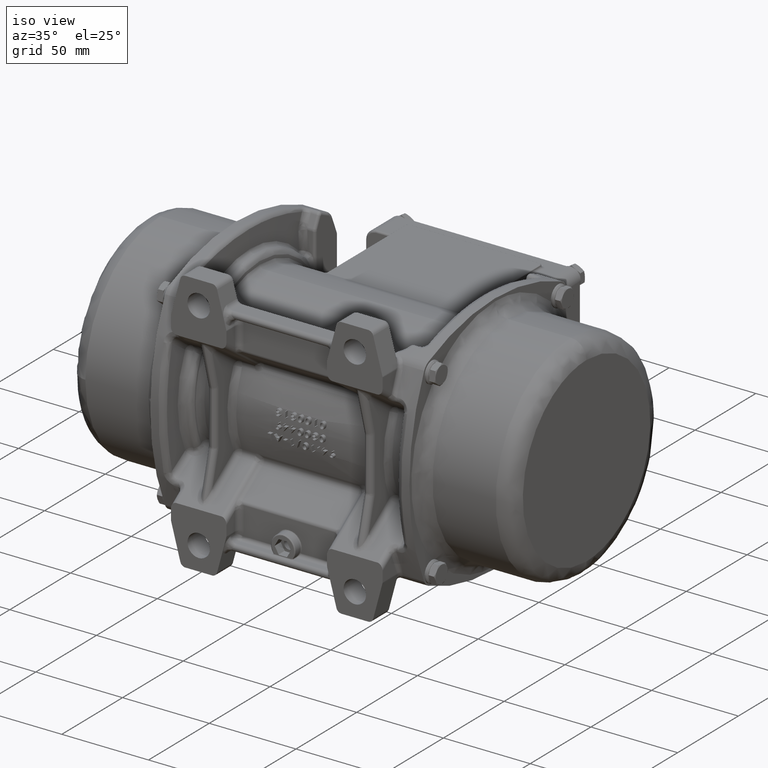
[diagram: clean part render]
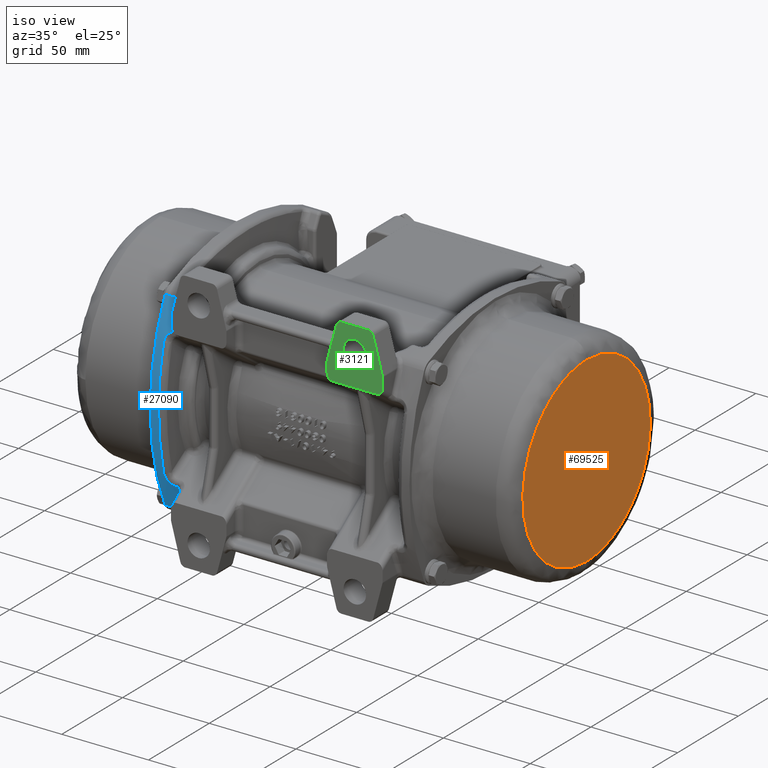
[diagram: same view with three faces highlighted in distinct colors, each labeled with its STEP entity id]
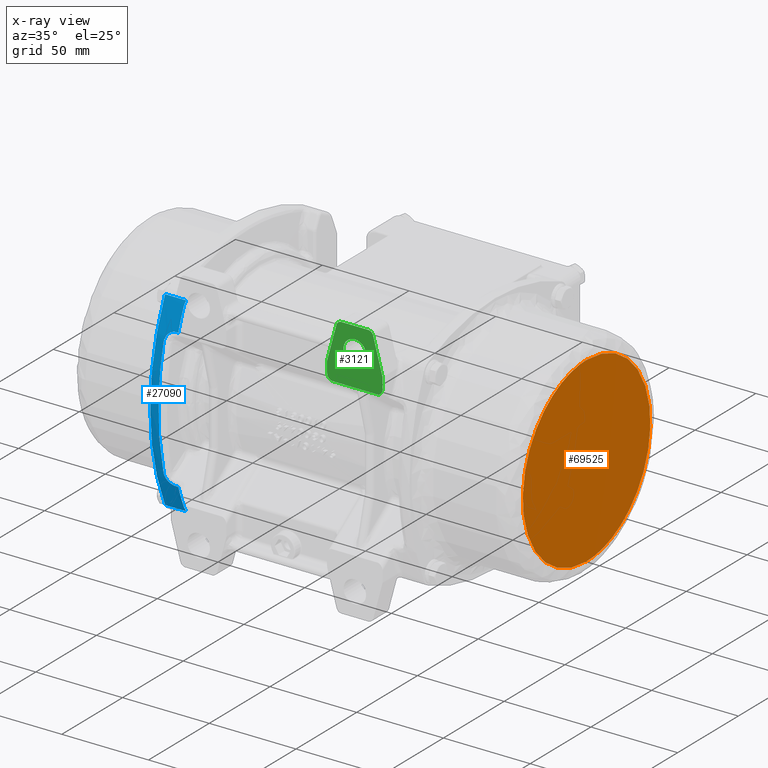
[diagram: x-ray of the same camera — body ghosted, the three highlighted faces saturated]
A machine part, iso view with three faces highlighted in distinct colors.
The next image is the same camera in x-ray (body ghosted, the three faces saturated) — at least one of them is partly hidden behind the body in this view.
Their STEP definitions:

[orange] entity #69525 — the highlighted planar face has unit normal (-1, 0, 0).
#76 = CARTESIAN_POINT ( 'NONE',  ( 127.5000000000000000, -7.244592828937403500E-015, -52.50000000000001400 ) ) ;
#867 = CARTESIAN_POINT ( 'NONE',  ( 127.5000000000000100, -105.0000000000000600, -52.50000000000005700 ) ) ;
#1122 = FACE_OUTER_BOUND ( 'NONE', #1366, .T. ) ;
#1366 = EDGE_LOOP ( 'NONE', ( #44608, #71808 ) ) ;
#5698 = PLANE ( 'NONE',  #60823 ) ;
#18020 = CARTESIAN_POINT ( 'NONE',  ( 127.5000000000000000, 61.69999999999998200, -1.734723475976807100E-014 ) ) ;
#18949 = EDGE_CURVE ( 'NONE', #48299, #70245, #33278, .T. ) ;
#19471 = CARTESIAN_POINT ( 'NONE',  ( 127.5000000000000100, 104.9999999999999700, -52.49999999999999300 ) ) ;
#25945 = CARTESIAN_POINT ( 'NONE',  ( 127.5000000000000100, 104.9999999999999700, 52.49999999999998600 ) ) ;
#30328 = DIRECTION ( 'NONE',  ( -1.000000000000000000, 0.0000000000000000000, 0.0000000000000000000 ) ) ;
#33278 =( BOUNDED_CURVE ( )  B_SPLINE_CURVE ( 3, ( #51055, #25945, #19471, #56526 ),
 .UNSPECIFIED., .F., .T. ) 
 B_SPLINE_CURVE_WITH_KNOTS ( ( 4, 4 ),
 ( 0.0000000000000000000, 1.000000000000000000 ),
 .UNSPECIFIED. ) 
 CURVE ( )  GEOMETRIC_REPRESENTATION_ITEM ( )  RATIONAL_B_SPLINE_CURVE ( ( 1.000000000000000000, 0.3333333333333333700, 0.3333333333333333700, 1.000000000000000000 ) ) 
 REPRESENTATION_ITEM ( '' )  );
#33658 = CARTESIAN_POINT ( 'NONE',  ( 127.5000000000000000, -1.387778780781445700E-014, 52.49999999999999300 ) ) ;
#44608 = ORIENTED_EDGE ( 'NONE', *, *, #18949, .F. ) ;
#48299 = VERTEX_POINT ( 'NONE', #33658 ) ;
#50121 = CARTESIAN_POINT ( 'NONE',  ( 127.5000000000000100, -105.0000000000000600, 52.50000000000001400 ) ) ;
#51055 = CARTESIAN_POINT ( 'NONE',  ( 127.5000000000000000, -1.387778780781445700E-014, 52.49999999999999300 ) ) ;
#55849 = CARTESIAN_POINT ( 'NONE',  ( 127.5000000000000000, -1.387778780781445700E-014, 52.49999999999999300 ) ) ;
#56526 = CARTESIAN_POINT ( 'NONE',  ( 127.5000000000000000, -7.244592828937403500E-015, -52.50000000000001400 ) ) ;
#57244 = EDGE_CURVE ( 'NONE', #70245, #48299, #78097, .T. ) ;
#60823 = AXIS2_PLACEMENT_3D ( 'NONE', #18020, #30328, #66552 ) ;
#62247 = CARTESIAN_POINT ( 'NONE',  ( 127.5000000000000000, -7.244592828937403500E-015, -52.50000000000001400 ) ) ;
#66552 = DIRECTION ( 'NONE',  ( 0.0000000000000000000, 0.0000000000000000000, 1.000000000000000000 ) ) ;
#69525 = ADVANCED_FACE ( 'NONE', ( #1122 ), #5698, .F. ) ;
#70245 = VERTEX_POINT ( 'NONE', #76 ) ;
#71808 = ORIENTED_EDGE ( 'NONE', *, *, #57244, .F. ) ;
#78097 =( BOUNDED_CURVE ( )  B_SPLINE_CURVE ( 3, ( #62247, #867, #50121, #55849 ),
 .UNSPECIFIED., .F., .T. ) 
 B_SPLINE_CURVE_WITH_KNOTS ( ( 4, 4 ),
 ( 0.0000000000000000000, 1.000000000000000000 ),
 .UNSPECIFIED. ) 
 CURVE ( )  GEOMETRIC_REPRESENTATION_ITEM ( )  RATIONAL_B_SPLINE_CURVE ( ( 1.000000000000000000, 0.3333333333333333700, 0.3333333333333333700, 1.000000000000000000 ) ) 
 REPRESENTATION_ITEM ( '' )  );

[blue] entity #27090 — the highlighted cylindrical surface (partial cylindrical patch) has radius 130 mm, axis along (1, 0, 0).
#206 = CARTESIAN_POINT ( 'NONE',  ( -84.50000000000000000, -64.13621963389023500, -40.17567914348743600 ) ) ;
#263 = CARTESIAN_POINT ( 'NONE',  ( -70.15863339734033800, -65.75944569806641500, -34.78836657885315000 ) ) ;
#1288 = CARTESIAN_POINT ( 'NONE',  ( -64.26656656145272000, -64.13621963389023500, -40.17567914348742200 ) ) ;
#1546 = CIRCLE ( 'NONE', #68718, 130.0000000000000000 ) ;
#1839 = DIRECTION ( 'NONE',  ( 0.0000000000000000000, 0.0000000000000000000, -1.000000000000000000 ) ) ;
#2520 = CARTESIAN_POINT ( 'NONE',  ( -65.07540541843221100, -64.14976761303411500, 40.13405775324092400 ) ) ;
#2785 = CARTESIAN_POINT ( 'NONE',  ( -67.98284229279646200, -64.55872330079957100, 38.85166697665173500 ) ) ;
#3061 = CARTESIAN_POINT ( 'NONE',  ( -67.50183809113144700, -64.44686132362456000, 39.20702064007236500 ) ) ;
#3154 = CARTESIAN_POINT ( 'NONE',  ( -62.55136478271125400, -58.44165846515438300, -54.67947744774711800 ) ) ;
#4311 = CARTESIAN_POINT ( 'NONE',  ( -68.28645511692450000, -64.64213432300400100, -38.58431275794490000 ) ) ;
#4896 = CARTESIAN_POINT ( 'NONE',  ( -70.02047861368029700, -70.50021932931566900, -0.6495124212176074400 ) ) ;
#5089 = CARTESIAN_POINT ( 'NONE',  ( -62.75451543836693700, -58.77366558624741800, -53.95728529038697000 ) ) ;
#5120 = CYLINDRICAL_SURFACE ( 'NONE', #32247, 130.0000000000000000 ) ;
#5196 = AXIS2_PLACEMENT_3D ( 'NONE', #36475, #79184, #78645 ) ;
#5637 = CARTESIAN_POINT ( 'NONE',  ( -69.71949246270128200, -65.27469252197136000, -36.48715338828157700 ) ) ;
#5693 = CARTESIAN_POINT ( 'NONE',  ( -70.02055500264829400, -70.49818281844429200, 5.578669685042648900 ) ) ;
#7174 = CARTESIAN_POINT ( 'NONE',  ( -63.00000000000000000, -59.41153771726236200, 52.53614182366344900 ) ) ;
#7811 = ORIENTED_EDGE ( 'NONE', *, *, #63604, .F. ) ;
#7853 = CARTESIAN_POINT ( 'NONE',  ( -74.69999999999998900, 59.50000000000003600, -3.408303700016811600E-014 ) ) ;
#7880 = CARTESIAN_POINT ( 'NONE',  ( -70.01606462718390800, -65.54156097943800300, 35.56187078237106600 ) ) ;
#8027 = EDGE_CURVE ( 'NONE', #78558, #59800, #51573, .T. ) ;
#8417 = CARTESIAN_POINT ( 'NONE',  ( -67.82836805820424800, -64.52026945245107500, 38.97419228656716000 ) ) ;
#8789 = CARTESIAN_POINT ( 'NONE',  ( -62.62853541377742800, -58.56158496709549900, 54.42008314309964600 ) ) ;
#9923 = LINE ( 'NONE', #206, #63556 ) ;
#10130 = EDGE_CURVE ( 'NONE', #63652, #16405, #9923, .T. ) ;
#10484 = CARTESIAN_POINT ( 'NONE',  ( -68.69728901072484500, -64.77464484924361400, -38.15541355748199200 ) ) ;
#10702 = CARTESIAN_POINT ( 'NONE',  ( -74.69999999999998900, -58.32209224431407800, 54.93591338252540600 ) ) ;
#11022 = CARTESIAN_POINT ( 'NONE',  ( -64.47181066951986800, -64.13623196582827300, -40.17564119330872800 ) ) ;
#11552 = CARTESIAN_POINT ( 'NONE',  ( -69.85576077723239100, -65.38104236716814900, -36.12148271627329200 ) ) ;
#11971 = DIRECTION ( 'NONE',  ( 1.000000000000000000, 0.0000000000000000000, 0.0000000000000000000 ) ) ;
#12104 = CARTESIAN_POINT ( 'NONE',  ( -62.86370330515625700, -58.95582961509591500, 53.55573200134007500 ) ) ;
#12133 = CARTESIAN_POINT ( 'NONE',  ( -70.02153343693527200, -70.47299407974708200, -2.739752207317573100 ) ) ;
#12398 = EDGE_CURVE ( 'NONE', #38838, #31914, #14306, .T. ) ;
#12663 = ORIENTED_EDGE ( 'NONE', *, *, #59368, .T. ) ;
#12821 = VECTOR ( 'NONE', #61629, 1000.000000000000000 ) ;
#12918 = ORIENTED_EDGE ( 'NONE', *, *, #10130, .F. ) ;
#13513 = CARTESIAN_POINT ( 'NONE',  ( -62.86370330515627100, -58.95582961509595800, -53.55573200134002600 ) ) ;
#13804 = CARTESIAN_POINT ( 'NONE',  ( -70.12304738136913300, -65.70478849482819300, 34.98243915539011800 ) ) ;
#14040 = CARTESIAN_POINT ( 'NONE',  ( -63.00000000000000000, -59.41153771726241900, -52.53614182366338500 ) ) ;
#14306 = B_SPLINE_CURVE_WITH_KNOTS ( 'NONE', 3,
 ( #24219, #66798, #60380, #72972, #35376, #78598, #78318, #35636, #12133, #41519, #4896, #5693, #36167, #48533, #60648, #47723 ),
 .UNSPECIFIED., .F., .F.,
 ( 4, 2, 2, 2, 2, 2, 2, 4 ),
 ( 0.0000000000000000000, 0.2500000000000000000, 0.3750000000000000000, 0.4375000000000000000, 0.4687500000000000000, 0.5000000000000000000, 0.7500000000000000000, 1.000000000000000000 ),
 .UNSPECIFIED. ) ;
#14315 = EDGE_CURVE ( 'NONE', #77862, #33301, #69282, .T. ) ;
#15085 = CARTESIAN_POINT ( 'NONE',  ( -63.00000000000000000, -64.13621963389022100, 40.17567914348742200 ) ) ;
#15088 = ORIENTED_EDGE ( 'NONE', *, *, #20317, .T. ) ;
#15400 = CARTESIAN_POINT ( 'NONE',  ( -68.42354580339902300, -64.68360600912127700, 38.45068959799006300 ) ) ;
#15663 = CARTESIAN_POINT ( 'NONE',  ( -66.80726439658958800, -64.32223427905793800, 39.59869323817893900 ) ) ;
#16405 = VERTEX_POINT ( 'NONE', #40596 ) ;
#17248 = B_SPLINE_CURVE_WITH_KNOTS ( 'NONE', 3,
 ( #65935, #5089, #48202, #35310 ),
 .UNSPECIFIED., .F., .F.,
 ( 4, 4 ),
 ( 0.0000000000000000000, 1.000000000000000000 ),
 .UNSPECIFIED. ) ;
#17589 = EDGE_CURVE ( 'NONE', #31914, #29405, #69741, .T. ) ;
#18487 = CARTESIAN_POINT ( 'NONE',  ( -70.18981137030023400, -65.86684212015367700, -34.39943812181682100 ) ) ;
#18501 = LINE ( 'NONE', #53111, #41407 ) ;
#18677 = CARTESIAN_POINT ( 'NONE',  ( -62.86370330515625700, -58.95582961509591500, 53.55573200134007500 ) ) ;
#18733 = CARTESIAN_POINT ( 'NONE',  ( -69.47147135425828400, -65.11771318563403100, -37.01971127994905000 ) ) ;
#18981 = CARTESIAN_POINT ( 'NONE',  ( -84.50000000000000000, -64.13621963389022100, 40.17567914348741500 ) ) ;
#19727 = CARTESIAN_POINT ( 'NONE',  ( -64.26656656145272000, -64.13621963389020700, 40.17567914348742200 ) ) ;
#19923 = CARTESIAN_POINT ( 'NONE',  ( -70.10881586443723300, -65.67807832621393500, 35.07789813293415900 ) ) ;
#20317 = EDGE_CURVE ( 'NONE', #51021, #77862, #70200, .T. ) ;
#20535 = B_SPLINE_CURVE_WITH_KNOTS ( 'NONE', 3,
 ( #26755, #8789, #59706, #59975 ),
 .UNSPECIFIED., .F., .F.,
 ( 4, 4 ),
 ( 0.0000000000000000000, 1.000000000000000000 ),
 .UNSPECIFIED. ) ;
#21517 = CARTESIAN_POINT ( 'NONE',  ( -69.71689416515816600, -65.27278669867281700, 36.49368000567605500 ) ) ;
#21739 = CARTESIAN_POINT ( 'NONE',  ( -62.86370330515627100, -58.95582961509595800, -53.55573200134002600 ) ) ;
#22333 = FACE_OUTER_BOUND ( 'NONE', #53797, .T. ) ;
#22797 = VERTEX_POINT ( 'NONE', #10702 ) ;
#22798 = CARTESIAN_POINT ( 'NONE',  ( -65.28219470665767700, -64.16454896237773700, -40.08839742064807200 ) ) ;
#23337 = CARTESIAN_POINT ( 'NONE',  ( -64.67577085090452700, -64.13967564433022500, -40.16504825175500300 ) ) ;
#23612 = CARTESIAN_POINT ( 'NONE',  ( -67.59451921621665300, -64.46762769720342600, -39.14116672350849800 ) ) ;
#23844 = ORIENTED_EDGE ( 'NONE', *, *, #77779, .T. ) ;
#24178 = CARTESIAN_POINT ( 'NONE',  ( -69.94496927647381300, -65.46141535050297500, -35.84288373185664500 ) ) ;
#24219 = CARTESIAN_POINT ( 'NONE',  ( -70.18602358918423100, -65.97356191049067300, -34.00566513824217900 ) ) ;
#24435 = CARTESIAN_POINT ( 'NONE',  ( -70.01468867072979700, -65.54261923687752800, -35.55774577205265500 ) ) ;
#24695 = CARTESIAN_POINT ( 'NONE',  ( -69.64186598347384900, -65.22140353452981300, -36.66885549406608600 ) ) ;
#25227 = CARTESIAN_POINT ( 'NONE',  ( -62.69992150497063900, -58.68181818181814400, 54.15771275856899100 ) ) ;
#26362 = DIRECTION ( 'NONE',  ( 0.0000000000000000000, 0.0000000000000000000, -1.000000000000000000 ) ) ;
#26755 = CARTESIAN_POINT ( 'NONE',  ( -62.69992150497063900, -58.68181818181814400, 54.15771275856899100 ) ) ;
#27090 = ADVANCED_FACE ( 'NONE', ( #22333 ), #5120, .T. ) ;
#27438 = CARTESIAN_POINT ( 'NONE',  ( -66.25389136304995900, -64.24342542036284000, 39.84462329652305400 ) ) ;
#27697 = CARTESIAN_POINT ( 'NONE',  ( -69.60107042843702600, -65.19354431331302600, 36.76381640732994100 ) ) ;
#27972 = CARTESIAN_POINT ( 'NONE',  ( -69.16938952220758100, -64.96445043388546000, 37.53174472721374100 ) ) ;
#28698 = CARTESIAN_POINT ( 'NONE',  ( -67.83588939444332800, -64.52211303895418800, -38.96832142590417900 ) ) ;
#29325 = LINE ( 'NONE', #47259, #75320 ) ;
#29405 = VERTEX_POINT ( 'NONE', #19727 ) ;
#29494 = CARTESIAN_POINT ( 'NONE',  ( -66.81440575835793500, -64.32242925017548900, -39.59814737199320000 ) ) ;
#30024 = CARTESIAN_POINT ( 'NONE',  ( -69.05958558903334700, -64.91697535750798000, -37.68850662567362500 ) ) ;
#30283 = CARTESIAN_POINT ( 'NONE',  ( -70.18602358918423100, -65.97356191049067300, -34.00566513824217900 ) ) ;
#31914 = VERTEX_POINT ( 'NONE', #78864 ) ;
#32247 = AXIS2_PLACEMENT_3D ( 'NONE', #55380, #11971, #36256 ) ;
#32335 = DIRECTION ( 'NONE',  ( -1.000000000000000000, -0.0000000000000000000, -0.0000000000000000000 ) ) ;
#32730 = CARTESIAN_POINT ( 'NONE',  ( -62.95455174411385000, -59.10682478008153100, -53.22175733853847400 ) ) ;
#33301 = VERTEX_POINT ( 'NONE', #25227 ) ;
#33776 = EDGE_CURVE ( 'NONE', #58215, #65173, #18501, .T. ) ;
#33791 = CARTESIAN_POINT ( 'NONE',  ( -64.26656656145272000, -64.13621963389020700, 40.17567914348742200 ) ) ;
#33880 = CARTESIAN_POINT ( 'NONE',  ( -62.62853539774737800, -58.56158494113157100, -54.42008319975772000 ) ) ;
#34783 = CARTESIAN_POINT ( 'NONE',  ( -67.08318439040988300, -64.36566726093740000, -39.46284139960411600 ) ) ;
#35295 = CARTESIAN_POINT ( 'NONE',  ( -62.69992150497225200, -58.68181818182090800, -54.15771275856303600 ) ) ;
#35310 = CARTESIAN_POINT ( 'NONE',  ( -62.86370330515627100, -58.95582961509595800, -53.55573200134002600 ) ) ;
#35376 = CARTESIAN_POINT ( 'NONE',  ( -70.03763688953608800, -70.05038423832017700, -11.16540597562390300 ) ) ;
#35590 = CARTESIAN_POINT ( 'NONE',  ( -65.87790247306470800, -64.20442847344062900, -39.96526091718178700 ) ) ;
#35636 = CARTESIAN_POINT ( 'NONE',  ( -70.02217315050312200, -70.45642006041967400, -3.437803931804399100 ) ) ;
#35814 = LINE ( 'NONE', #18981, #12821 ) ;
#35874 = CARTESIAN_POINT ( 'NONE',  ( -62.75451543836585700, -58.77366558624555600, 53.95728529039097100 ) ) ;
#36167 = CARTESIAN_POINT ( 'NONE',  ( -70.03438366062086100, -70.14225392325742800, 11.21103160128219900 ) ) ;
#36256 = DIRECTION ( 'NONE',  ( 0.0000000000000000000, 0.0000000000000000000, -1.000000000000000000 ) ) ;
#36475 = CARTESIAN_POINT ( 'NONE',  ( -63.00000000000000000, 59.50000000000003600, -3.408303700016811600E-014 ) ) ;
#37826 = DIRECTION ( 'NONE',  ( 1.000000000000000000, 0.0000000000000000000, 0.0000000000000000000 ) ) ;
#38229 = CARTESIAN_POINT ( 'NONE',  ( -70.18602358918423100, -65.97356191049067300, -34.00566513824217900 ) ) ;
#38258 = CARTESIAN_POINT ( 'NONE',  ( -63.00000000000000000, -59.41153771726236200, 52.53614182366344900 ) ) ;
#38838 = VERTEX_POINT ( 'NONE', #38229 ) ;
#39151 = CARTESIAN_POINT ( 'NONE',  ( -68.28099679278486200, -64.64051873810620900, 38.58951232294725700 ) ) ;
#39410 = CARTESIAN_POINT ( 'NONE',  ( -68.81830400988687300, -64.81996466432843800, 38.00727035472056100 ) ) ;
#39686 = CARTESIAN_POINT ( 'NONE',  ( -69.00238999079184100, -64.89044319539671300, 37.77650286802020200 ) ) ;
#40141 = EDGE_CURVE ( 'NONE', #51639, #51021, #65964, .T. ) ;
#40596 = CARTESIAN_POINT ( 'NONE',  ( -63.00000000000000000, -64.13621963389023500, -40.17567914348742200 ) ) ;
#40951 = CARTESIAN_POINT ( 'NONE',  ( -67.99036791979999400, -64.56067392442784600, -38.84543590552781500 ) ) ;
#41018 = CARTESIAN_POINT ( 'NONE',  ( -62.46840965986390900, -58.32209224431422700, -54.93591338252515800 ) ) ;
#41204 = ORIENTED_EDGE ( 'NONE', *, *, #66424, .T. ) ;
#41407 = VECTOR ( 'NONE', #58775, 1000.000000000000000 ) ;
#41519 = CARTESIAN_POINT ( 'NONE',  ( -70.02068615799368000, -70.49489399285263900, -1.346465000836286800 ) ) ;
#41737 = CARTESIAN_POINT ( 'NONE',  ( -65.08080237863811100, -64.15426496234435700, -40.12010760761347700 ) ) ;
#41871 = ORIENTED_EDGE ( 'NONE', *, *, #40141, .T. ) ;
#43572 = VERTEX_POINT ( 'NONE', #60075 ) ;
#44415 = CARTESIAN_POINT ( 'NONE',  ( -62.95455174411387800, -59.10682478008157400, 53.22175733853835300 ) ) ;
#45058 = CARTESIAN_POINT ( 'NONE',  ( -69.46670460977360100, -65.11641803984159100, 37.02372636711041300 ) ) ;
#45323 = CARTESIAN_POINT ( 'NONE',  ( -64.67359065457198100, -64.13624381551942100, 40.17560472719174700 ) ) ;
#45877 = CARTESIAN_POINT ( 'NONE',  ( -65.86861628763452400, -64.20356344587391100, 39.96793731593443500 ) ) ;
#47149 = CARTESIAN_POINT ( 'NONE',  ( -68.42918605660654000, -64.68540738305890200, -38.44486349633477600 ) ) ;
#47259 = CARTESIAN_POINT ( 'NONE',  ( -84.50000000000000000, -58.32209224431422000, 54.93591338252509400 ) ) ;
#47723 = CARTESIAN_POINT ( 'NONE',  ( -70.18602358918434400, -65.97356191049064500, 34.00566513824222900 ) ) ;
#48090 = CARTESIAN_POINT ( 'NONE',  ( -74.69999999999998900, -58.32209224431420600, -54.93591338252515800 ) ) ;
#48202 = CARTESIAN_POINT ( 'NONE',  ( -62.80910937176159300, -58.86500312472303900, -53.75662417228223000 ) ) ;
#48533 = CARTESIAN_POINT ( 'NONE',  ( -70.08956248990115500, -68.65407786687576700, 22.56841948294225000 ) ) ;
#49207 = DIRECTION ( 'NONE',  ( 1.000000000000000000, 0.0000000000000000000, 0.0000000000000000000 ) ) ;
#49472 = B_SPLINE_CURVE_WITH_KNOTS ( 'NONE', 3,
 ( #59292, #11022, #23337, #66219, #41737, #22798, #71599, #35590, #60332, #29494, #34783, #72384, #78541, #23612, #28698, #40951, #4311, #47149, #10484, #53362, #30024, #72648, #54717, #78826, #18733, #24695, #5637, #11552, #24178, #24435, #72926, #79091, #263, #18487, #30283 ),
 .UNSPECIFIED., .F., .F.,
 ( 4, 2, 2, 2, 2, 1, 2, 2, 2, 2, 1, 2, 2, 2, 2, 1, 2, 2, 4 ),
 ( 0.0000000000000000000, 0.06250000000000158200, 0.09375000000000237300, 0.1250000000000031600, 0.2500000000000067700, 0.3125000000000112700, 0.3437500000000118200, 0.3750000000000123800, 0.4375000000000139900, 0.5000000000000155400, 0.5625000000000171000, 0.5937500000000182100, 0.6250000000000194300, 0.6875000000000184300, 0.7500000000000174300, 0.8125000000000164300, 0.8437500000000137700, 0.8750000000000111000, 1.000000000000000000 ),
 .UNSPECIFIED. ) ;
#49913 = CARTESIAN_POINT ( 'NONE',  ( -62.99998397572842600, -59.25877440145490000, -52.88190990176914900 ) ) ;
#50222 = VERTEX_POINT ( 'NONE', #35295 ) ;
#50727 = CARTESIAN_POINT ( 'NONE',  ( -69.91401901329706400, -65.43346463373315200, 35.93978353201806900 ) ) ;
#51021 = VERTEX_POINT ( 'NONE', #7174 ) ;
#51188 = ORIENTED_EDGE ( 'NONE', *, *, #8027, .T. ) ;
#51250 = CARTESIAN_POINT ( 'NONE',  ( -67.24939265939116200, -64.39578312713608500, 39.36817266329540400 ) ) ;
#51533 = CARTESIAN_POINT ( 'NONE',  ( -68.62757696025013800, -64.75140488200472100, 38.23080260530161200 ) ) ;
#51573 = B_SPLINE_CURVE_WITH_KNOTS ( 'NONE', 3,
 ( #13513, #32730, #49913, #14040 ),
 .UNSPECIFIED., .F., .F.,
 ( 4, 4 ),
 ( 0.0000000000000000000, 1.000000000000000000 ),
 .UNSPECIFIED. ) ;
#51639 = VERTEX_POINT ( 'NONE', #15085 ) ;
#52367 = CARTESIAN_POINT ( 'NONE',  ( -69.85484396350436500, -65.38020791550610500, 36.12437752943507300 ) ) ;
#53111 = CARTESIAN_POINT ( 'NONE',  ( -84.50000000000000000, -58.32209224431421300, -54.93591338252515800 ) ) ;
#53362 = CARTESIAN_POINT ( 'NONE',  ( -68.88697826835101500, -64.84403762871541200, -37.92898669835970100 ) ) ;
#53797 = EDGE_LOOP ( 'NONE', ( #58225, #75557, #72721, #7811, #41871, #15088, #75613, #41204, #76439, #64876, #69652, #77858, #12663, #51188, #23844, #12918 ) ) ;
#54717 = CARTESIAN_POINT ( 'NONE',  ( -69.22563274410875100, -64.99195892759541900, -37.44008148353538000 ) ) ;
#54986 = CARTESIAN_POINT ( 'NONE',  ( -62.99998397572845500, -59.25877440145491400, 52.88190990176906300 ) ) ;
#55380 = CARTESIAN_POINT ( 'NONE',  ( -84.50000000000000000, 59.50000000000003600, -3.408303700016811600E-014 ) ) ;
#58215 = VERTEX_POINT ( 'NONE', #41018 ) ;
#58225 = ORIENTED_EDGE ( 'NONE', *, *, #77661, .T. ) ;
#58775 = DIRECTION ( 'NONE',  ( -1.000000000000000000, -0.0000000000000000000, -0.0000000000000000000 ) ) ;
#59292 = CARTESIAN_POINT ( 'NONE',  ( -64.26656656145272000, -64.13621963389023500, -40.17567914348742200 ) ) ;
#59368 = EDGE_CURVE ( 'NONE', #50222, #78558, #17248, .T. ) ;
#59706 = CARTESIAN_POINT ( 'NONE',  ( -62.55136479874179400, -58.44165849149223400, 54.67947739125974500 ) ) ;
#59800 = VERTEX_POINT ( 'NONE', #60521 ) ;
#59975 = CARTESIAN_POINT ( 'NONE',  ( -62.46840965986374500, -58.32209224431394300, 54.93591338252570500 ) ) ;
#60075 = CARTESIAN_POINT ( 'NONE',  ( -62.46840965986374500, -58.32209224431394300, 54.93591338252570500 ) ) ;
#60332 = CARTESIAN_POINT ( 'NONE',  ( -66.26169481300857500, -64.24440469249638900, -39.84157815818667100 ) ) ;
#60380 = CARTESIAN_POINT ( 'NONE',  ( -70.08935853326295300, -68.65972669973876900, -22.53992427678267400 ) ) ;
#60450 = AXIS2_PLACEMENT_3D ( 'NONE', #7853, #37826, #26362 ) ;
#60521 = CARTESIAN_POINT ( 'NONE',  ( -63.00000000000000000, -59.41153771726241900, -52.53614182366338500 ) ) ;
#60648 = CARTESIAN_POINT ( 'NONE',  ( -70.13091266120893900, -67.52168545165537200, 28.29342353973947200 ) ) ;
#61629 = DIRECTION ( 'NONE',  ( -1.000000000000000000, -0.0000000000000000000, -0.0000000000000000000 ) ) ;
#62588 = CARTESIAN_POINT ( 'NONE',  ( -70.18602358918434400, -65.97356191049064500, 34.00566513824222900 ) ) ;
#63556 = VECTOR ( 'NONE', #49207, 1000.000000000000000 ) ;
#63604 = EDGE_CURVE ( 'NONE', #51639, #29405, #35814, .T. ) ;
#63652 = VERTEX_POINT ( 'NONE', #1288 ) ;
#63789 = EDGE_CURVE ( 'NONE', #58215, #50222, #67769, .T. ) ;
#64430 = CARTESIAN_POINT ( 'NONE',  ( -68.69178303384153100, -64.77377999793276300, 38.15801120318103300 ) ) ;
#64688 = CARTESIAN_POINT ( 'NONE',  ( -69.37300693467750500, -65.06548460902737900, 37.19473085405227400 ) ) ;
#64770 = CARTESIAN_POINT ( 'NONE',  ( -62.69992150497225200, -58.68181818182090800, -54.15771275856303600 ) ) ;
#64876 = ORIENTED_EDGE ( 'NONE', *, *, #72128, .T. ) ;
#65173 = VERTEX_POINT ( 'NONE', #48090 ) ;
#65935 = CARTESIAN_POINT ( 'NONE',  ( -62.69992150497225200, -58.68181818182090800, -54.15771275856303600 ) ) ;
#65964 = CIRCLE ( 'NONE', #5196, 130.0000000000000000 ) ;
#66219 = CARTESIAN_POINT ( 'NONE',  ( -64.97978523295769500, -64.14997597172944700, -40.13332238696384700 ) ) ;
#66424 = EDGE_CURVE ( 'NONE', #33301, #43572, #20535, .T. ) ;
#66798 = CARTESIAN_POINT ( 'NONE',  ( -70.13077669011680400, -67.52550501007861800, -28.27933019387083000 ) ) ;
#67769 = B_SPLINE_CURVE_WITH_KNOTS ( 'NONE', 3,
 ( #77391, #3154, #33880, #64770 ),
 .UNSPECIFIED., .F., .F.,
 ( 4, 4 ),
 ( 0.0000000000000000000, 1.000000000000000000 ),
 .UNSPECIFIED. ) ;
#68714 = CARTESIAN_POINT ( 'NONE',  ( -70.18792181704675700, -65.92007965105682400, 34.20300312774798400 ) ) ;
#68718 = AXIS2_PLACEMENT_3D ( 'NONE', #76078, #32335, #1839 ) ;
#68981 = CARTESIAN_POINT ( 'NONE',  ( -70.14750091609846500, -65.75875644127803800, 34.78870572585047000 ) ) ;
#69282 = B_SPLINE_CURVE_WITH_KNOTS ( 'NONE', 3,
 ( #72664, #78291, #35874, #71871 ),
 .UNSPECIFIED., .F., .F.,
 ( 4, 4 ),
 ( 0.0000000000000000000, 1.000000000000000000 ),
 .UNSPECIFIED. ) ;
#69652 = ORIENTED_EDGE ( 'NONE', *, *, #33776, .F. ) ;
#69741 = B_SPLINE_CURVE_WITH_KNOTS ( 'NONE', 3,
 ( #62588, #68714, #75710, #68981, #13804, #19923, #75174, #7880, #50727, #52367, #21517, #27697, #45058, #64688, #76242, #27972, #39686, #39410, #64430, #51533, #15400, #39151, #2785, #8417, #3061, #51250, #75974, #15663, #76515, #27438, #45877, #2520, #45323, #33791 ),
 .UNSPECIFIED., .F., .F.,
 ( 4, 1, 2, 2, 2, 2, 1, 2, 2, 1, 2, 2, 2, 2, 1, 2, 2, 2, 4 ),
 ( 0.0000000000000000000, 0.06250000000000294200, 0.09375000000000458000, 0.1250000000000062200, 0.1875000000000099100, 0.2500000000000136000, 0.3125000000000172600, 0.3437500000000191500, 0.3750000000000209800, 0.4375000000000208200, 0.4687500000000198700, 0.5000000000000189800, 0.5625000000000179900, 0.6250000000000171000, 0.6875000000000161000, 0.7187500000000154300, 0.7500000000000146500, 0.8750000000000073300, 1.000000000000000000 ),
 .UNSPECIFIED. ) ;
#70200 = B_SPLINE_CURVE_WITH_KNOTS ( 'NONE', 3,
 ( #38258, #54986, #44415, #12104 ),
 .UNSPECIFIED., .F., .F.,
 ( 4, 4 ),
 ( 0.0000000000000000000, 1.000000000000000000 ),
 .UNSPECIFIED. ) ;
#71599 = CARTESIAN_POINT ( 'NONE',  ( -65.38380449381551800, -64.17062842816183400, -40.06964119743229700 ) ) ;
#71871 = CARTESIAN_POINT ( 'NONE',  ( -62.69992150497063900, -58.68181818181814400, 54.15771275856899100 ) ) ;
#72128 = EDGE_CURVE ( 'NONE', #22797, #65173, #74762, .T. ) ;
#72384 = CARTESIAN_POINT ( 'NONE',  ( -67.34059776152794500, -64.41511020475721200, -39.30710741524426100 ) ) ;
#72648 = CARTESIAN_POINT ( 'NONE',  ( -69.17086115016741100, -64.96637005935197400, -37.52505846807762400 ) ) ;
#72664 = CARTESIAN_POINT ( 'NONE',  ( -62.86370330515625700, -58.95582961509591500, 53.55573200134007500 ) ) ;
#72721 = ORIENTED_EDGE ( 'NONE', *, *, #17589, .T. ) ;
#72926 = CARTESIAN_POINT ( 'NONE',  ( -70.05683735468144800, -65.59693007997179800, -35.36619847503131800 ) ) ;
#72972 = CARTESIAN_POINT ( 'NONE',  ( -70.04797441130277500, -69.77578524917171900, -14.00043862701248000 ) ) ;
#74762 = CIRCLE ( 'NONE', #60450, 130.0000000000000000 ) ;
#75174 = CARTESIAN_POINT ( 'NONE',  ( -70.05838598910102600, -65.59597294464420300, 35.37002228591213500 ) ) ;
#75320 = VECTOR ( 'NONE', #78124, 1000.000000000000000 ) ;
#75557 = ORIENTED_EDGE ( 'NONE', *, *, #12398, .T. ) ;
#75613 = ORIENTED_EDGE ( 'NONE', *, *, #14315, .T. ) ;
#75710 = CARTESIAN_POINT ( 'NONE',  ( -70.17759327754447400, -65.83959573512770200, 34.49720558708193600 ) ) ;
#75974 = CARTESIAN_POINT ( 'NONE',  ( -66.98562529299736900, -64.35082852957499700, 39.50916957577219100 ) ) ;
#76078 = CARTESIAN_POINT ( 'NONE',  ( -63.00000000000000000, 59.50000000000003600, -3.408303700016811600E-014 ) ) ;
#76242 = CARTESIAN_POINT ( 'NONE',  ( -69.32499808729714600, -65.04070108983820800, 37.27762858700960900 ) ) ;
#76439 = ORIENTED_EDGE ( 'NONE', *, *, #78226, .F. ) ;
#76515 = CARTESIAN_POINT ( 'NONE',  ( -66.71793906169251900, -64.30878178562260000, 39.64072888501802100 ) ) ;
#77391 = CARTESIAN_POINT ( 'NONE',  ( -62.46840965986390900, -58.32209224431422700, -54.93591338252515800 ) ) ;
#77661 = EDGE_CURVE ( 'NONE', #63652, #38838, #49472, .T. ) ;
#77779 = EDGE_CURVE ( 'NONE', #59800, #16405, #1546, .T. ) ;
#77858 = ORIENTED_EDGE ( 'NONE', *, *, #63789, .T. ) ;
#77862 = VERTEX_POINT ( 'NONE', #18677 ) ;
#78124 = DIRECTION ( 'NONE',  ( 1.000000000000000000, 0.0000000000000000000, 0.0000000000000000000 ) ) ;
#78226 = EDGE_CURVE ( 'NONE', #22797, #43572, #29325, .T. ) ;
#78291 = CARTESIAN_POINT ( 'NONE',  ( -62.80910937176106800, -58.86500312472209400, 53.75662417228428300 ) ) ;
#78318 = CARTESIAN_POINT ( 'NONE',  ( -70.02474051349797400, -70.38961537661198500, -5.535906474188345200 ) ) ;
#78541 = CARTESIAN_POINT ( 'NONE',  ( -67.50968106206575200, -64.44943338497424200, -39.19873969854784700 ) ) ;
#78558 = VERTEX_POINT ( 'NONE', #21739 ) ;
#78598 = CARTESIAN_POINT ( 'NONE',  ( -70.02731638521623800, -70.32230077334968100, -6.939906961779265700 ) ) ;
#78645 = DIRECTION ( 'NONE',  ( 0.0000000000000000000, 0.0000000000000000000, -1.000000000000000000 ) ) ;
#78826 = CARTESIAN_POINT ( 'NONE',  ( -69.37806270874300200, -65.06681195205877100, -37.19058370872844700 ) ) ;
#78864 = CARTESIAN_POINT ( 'NONE',  ( -70.18602358918434400, -65.97356191049064500, 34.00566513824222900 ) ) ;
#79091 = CARTESIAN_POINT ( 'NONE',  ( -70.07595373854573500, -65.62451161242566400, -35.26849221139416100 ) ) ;
#79184 = DIRECTION ( 'NONE',  ( -1.000000000000000000, -0.0000000000000000000, -0.0000000000000000000 ) ) ;

[green] entity #3121 — the highlighted planar face has unit normal (0, -1, 0).
#138 = VECTOR ( 'NONE', #53515, 1000.000000000000000 ) ;
#224 = CARTESIAN_POINT ( 'NONE',  ( 31.61799475574031200, -73.00000000000001400, 43.79066672286052200 ) ) ;
#481 = CARTESIAN_POINT ( 'NONE',  ( 30.02498767284706800, -73.00000000000002800, 44.68450825969008400 ) ) ;
#752 = CARTESIAN_POINT ( 'NONE',  ( 32.00000000000000000, -73.00000000000001400, 43.79050275674022400 ) ) ;
#2191 = EDGE_CURVE ( 'NONE', #35649, #36434, #16432, .T. ) ;
#2516 = EDGE_CURVE ( 'NONE', #39060, #27184, #39324, .T. ) ;
#2729 = DIRECTION ( 'NONE',  ( 0.0000000000000000000, -1.000000000000000000, 0.0000000000000000000 ) ) ;
#3121 = ADVANCED_FACE ( 'NONE', ( #24935, #4753 ), #10596, .T. ) ;
#3319 = EDGE_LOOP ( 'NONE', ( #20613, #26506, #51378, #55033, #29445, #46062, #77608, #60794, #19239, #59790, #71179, #65484, #63581 ) ) ;
#3723 = LINE ( 'NONE', #55281, #67041 ) ;
#3983 = CARTESIAN_POINT ( 'NONE',  ( 60.83673433905666900, -73.00020335461289300, 46.26048067253461900 ) ) ;
#4470 = VERTEX_POINT ( 'NONE', #24938 ) ;
#4753 = FACE_BOUND ( 'NONE', #70359, .T. ) ;
#4767 = CARTESIAN_POINT ( 'NONE',  ( 59.97044904442778800, -72.99999888617792000, 44.67899192492404100 ) ) ;
#5984 = DIRECTION ( 'NONE',  ( 0.0000000000000000000, -0.0000000000000000000, -1.000000000000000000 ) ) ;
#6686 = CARTESIAN_POINT ( 'NONE',  ( 28.99999999999999600, -73.00000000000000000, 53.34439015941209300 ) ) ;
#7146 = CARTESIAN_POINT ( 'NONE',  ( 29.36293644246770600, -73.00000000000000000, 45.63490268196062500 ) ) ;
#7914 = EDGE_CURVE ( 'NONE', #18429, #29642, #36859, .T. ) ;
#8822 = DIRECTION ( 'NONE',  ( -0.2588190451025227400, 0.0000000000000000000, -0.9659258262890677600 ) ) ;
#9108 = DIRECTION ( 'NONE',  ( 0.0000000000000000000, 1.000000000000000000, 0.0000000000000000000 ) ) ;
#9642 = LINE ( 'NONE', #52431, #34452 ) ;
#9899 = CARTESIAN_POINT ( 'NONE',  ( 60.79081824617220100, -73.00000021562286200, 46.10923267310962400 ) ) ;
#10157 = CARTESIAN_POINT ( 'NONE',  ( 60.79958385272868800, -73.00001109620183100, 46.13663459539689200 ) ) ;
#10596 = PLANE ( 'NONE',  #43066 ) ;
#10951 = CARTESIAN_POINT ( 'NONE',  ( 60.13747918139822700, -73.00000170566306700, 44.88301297895492300 ) ) ;
#11233 = CIRCLE ( 'NONE', #56653, 6.499999999999992000 ) ;
#11250 = CARTESIAN_POINT ( 'NONE',  ( 29.10319497377419400, -73.00000000000001400, 46.48710829542933000 ) ) ;
#12542 = DIRECTION ( 'NONE',  ( 1.734723475976805500E-015, 0.0000000000000000000, -1.000000000000000000 ) ) ;
#16432 = LINE ( 'NONE', #71216, #138 ) ;
#16570 = CARTESIAN_POINT ( 'NONE',  ( 60.23350165537452500, -73.00007294331261700, 45.00665313974583600 ) ) ;
#16839 = CARTESIAN_POINT ( 'NONE',  ( 60.70638498230429300, -72.99999941257893000, 45.84886607840685700 ) ) ;
#17104 = CARTESIAN_POINT ( 'NONE',  ( 60.84873800849759100, -73.00030156428739800, 46.30379683864161700 ) ) ;
#17144 = CARTESIAN_POINT ( 'NONE',  ( 29.00005450739781300, -73.00000000000000000, 47.21989719203440200 ) ) ;
#18429 = VERTEX_POINT ( 'NONE', #6686 ) ;
#19226 = DIRECTION ( 'NONE',  ( 0.0000000000000000000, 0.0000000000000000000, -1.000000000000000000 ) ) ;
#19239 = ORIENTED_EDGE ( 'NONE', *, *, #35458, .T. ) ;
#20613 = ORIENTED_EDGE ( 'NONE', *, *, #63070, .T. ) ;
#21128 = ORIENTED_EDGE ( 'NONE', *, *, #30470, .T. ) ;
#21245 = EDGE_CURVE ( 'NONE', #74443, #4470, #40953, .T. ) ;
#21660 = CARTESIAN_POINT ( 'NONE',  ( 45.00000000000001400, -73.00000000000000000, 62.50000000000000000 ) ) ;
#21756 = EDGE_CURVE ( 'NONE', #45952, #36581, #40889, .T. ) ;
#21860 = DIRECTION ( 'NONE',  ( -0.2588190451025227400, 0.0000000000000000000, 0.9659258262890676500 ) ) ;
#22457 = CARTESIAN_POINT ( 'NONE',  ( 60.81882650725154300, -73.00009024074884700, 46.19927167760813800 ) ) ;
#22731 = CARTESIAN_POINT ( 'NONE',  ( 61.00000000000000000, -73.00000000000000000, 47.45282652302456900 ) ) ;
#22998 = CARTESIAN_POINT ( 'NONE',  ( 61.00000000000000000, -73.00000000007990800, 47.14677876888342900 ) ) ;
#23007 = CARTESIAN_POINT ( 'NONE',  ( 59.00000000000000700, -73.00000000000000000, 53.34439015941209300 ) ) ;
#24095 = DIRECTION ( 'NONE',  ( -0.0000000000000000000, 1.000000000000000000, -0.0000000000000000000 ) ) ;
#24367 = CARTESIAN_POINT ( 'NONE',  ( 58.74961357939287200, -72.99999748927446300, 43.87622899159375600 ) ) ;
#24547 = CARTESIAN_POINT ( 'NONE',  ( 34.40420348506967200, -73.00000000000000000, 73.77645713530756700 ) ) ;
#24935 = FACE_OUTER_BOUND ( 'NONE', #3319, .T. ) ;
#24938 = CARTESIAN_POINT ( 'NONE',  ( 61.00000000000000000, -73.00000000000000000, 53.34439015941209300 ) ) ;
#25035 = LINE ( 'NONE', #38230, #38292 ) ;
#25158 = VERTEX_POINT ( 'NONE', #76233 ) ;
#25413 = AXIS2_PLACEMENT_3D ( 'NONE', #23007, #77174, #47351 ) ;
#25441 = CARTESIAN_POINT ( 'NONE',  ( 52.69801903606312300, -73.00000000000000000, 72.99999999999998600 ) ) ;
#25691 = EDGE_CURVE ( 'NONE', #25158, #36434, #74015, .T. ) ;
#26506 = ORIENTED_EDGE ( 'NONE', *, *, #25691, .T. ) ;
#26640 = VERTEX_POINT ( 'NONE', #30177 ) ;
#27184 = VERTEX_POINT ( 'NONE', #37039 ) ;
#28104 = CARTESIAN_POINT ( 'NONE',  ( 59.54994570825000700, -73.00017765885280600, 44.31480156085197600 ) ) ;
#28630 = CARTESIAN_POINT ( 'NONE',  ( 60.79446161398744400, -73.00000285132857400, 46.12055435341509500 ) ) ;
#29158 = CARTESIAN_POINT ( 'NONE',  ( 60.60376240596661300, -73.00034052651270100, 45.61697494640661400 ) ) ;
#29445 = ORIENTED_EDGE ( 'NONE', *, *, #71227, .F. ) ;
#29642 = VERTEX_POINT ( 'NONE', #36789 ) ;
#29691 = CARTESIAN_POINT ( 'NONE',  ( 58.37246502965187000, -73.00000469436092500, 43.79050604376712400 ) ) ;
#30177 = CARTESIAN_POINT ( 'NONE',  ( 45.00000000000001400, -73.00000000000000000, 68.99999999999998600 ) ) ;
#30210 = CARTESIAN_POINT ( 'NONE',  ( 31.00000000000000000, -73.00000000000000000, 53.34439015941209300 ) ) ;
#30330 = CARTESIAN_POINT ( 'NONE',  ( 60.93185165257813900, -73.00000000000000000, 53.86202824961714000 ) ) ;
#30374 = AXIS2_PLACEMENT_3D ( 'NONE', #33024, #75456, #50998 ) ;
#30470 = EDGE_CURVE ( 'NONE', #33608, #26640, #11233, .T. ) ;
#30760 = CARTESIAN_POINT ( 'NONE',  ( 30.56863290817290800, -73.00000000000000000, 44.22940487991037600 ) ) ;
#31014 = CARTESIAN_POINT ( 'NONE',  ( 29.58606362362692400, -72.99999999999998600, 45.22050113957254800 ) ) ;
#31801 = VERTEX_POINT ( 'NONE', #67669 ) ;
#33024 = CARTESIAN_POINT ( 'NONE',  ( 45.00000000000001400, -73.00000000000000000, 62.50000000000000000 ) ) ;
#33608 = VERTEX_POINT ( 'NONE', #37008 ) ;
#33702 = EDGE_CURVE ( 'NONE', #37686, #39060, #59731, .T. ) ;
#34173 = CARTESIAN_POINT ( 'NONE',  ( 59.46246452289769000, -73.00014319213025300, 44.25292233026244300 ) ) ;
#34452 = VECTOR ( 'NONE', #21860, 1000.000000000000100 ) ;
#34973 = CARTESIAN_POINT ( 'NONE',  ( 60.80989640396241200, -73.00004235403551400, 46.16960832224465600 ) ) ;
#35251 = CARTESIAN_POINT ( 'NONE',  ( 60.37307728200110500, -73.00026201675339600, 45.20934857505367400 ) ) ;
#35458 = EDGE_CURVE ( 'NONE', #36581, #37686, #56415, .T. ) ;
#35649 = VERTEX_POINT ( 'NONE', #57650 ) ;
#35672 = CARTESIAN_POINT ( 'NONE',  ( 28.99999999999999600, -73.00000000000000000, 43.79050275674021000 ) ) ;
#35778 = CARTESIAN_POINT ( 'NONE',  ( 34.40420348506967900, -73.00000000000000000, 73.77645713530758100 ) ) ;
#36314 = DIRECTION ( 'NONE',  ( -0.2588190451025223500, 0.0000000000000000000, -0.9659258262890678700 ) ) ;
#36434 = VERTEX_POINT ( 'NONE', #69792 ) ;
#36581 = VERTEX_POINT ( 'NONE', #36978 ) ;
#36605 = CARTESIAN_POINT ( 'NONE',  ( 29.19343809719018200, -73.00000000000000000, 46.15893291074046100 ) ) ;
#36789 = CARTESIAN_POINT ( 'NONE',  ( 29.06814834742186800, -73.00000000000000000, 53.86202824961714000 ) ) ;
#36859 = CIRCLE ( 'NONE', #53680, 2.000000000000001800 ) ;
#36978 = CARTESIAN_POINT ( 'NONE',  ( 52.69801903606312300, -73.00000000000000000, 75.99999999999998600 ) ) ;
#37008 = CARTESIAN_POINT ( 'NONE',  ( 45.00000000000001400, -73.00000000000000000, 56.00000000000000700 ) ) ;
#37039 = CARTESIAN_POINT ( 'NONE',  ( 30.63873645495452500, -73.00000000000000000, 59.72354286469244000 ) ) ;
#37123 = CARTESIAN_POINT ( 'NONE',  ( 30.26184821201135800, -73.00000000000001400, 44.44856856190026000 ) ) ;
#37380 = CARTESIAN_POINT ( 'NONE',  ( 30.87357936038539200, -73.00000000000001400, 44.05834456478507400 ) ) ;
#37647 = CARTESIAN_POINT ( 'NONE',  ( 30.80027001633844800, -73.00000000000001400, 44.09590017619608200 ) ) ;
#37686 = VERTEX_POINT ( 'NONE', #54003 ) ;
#38183 = DIRECTION ( 'NONE',  ( 0.0000000000000000000, -1.000000000000000000, 0.0000000000000000000 ) ) ;
#38230 = CARTESIAN_POINT ( 'NONE',  ( 61.00000000000000000, -73.00000000000000000, -1.110223024625156500E-013 ) ) ;
#38292 = VECTOR ( 'NONE', #43858, 1000.000000000000000 ) ;
#39060 = VERTEX_POINT ( 'NONE', #24547 ) ;
#39324 = LINE ( 'NONE', #35778, #70097 ) ;
#40001 = VECTOR ( 'NONE', #56800, 1000.000000000000000 ) ;
#40617 = CARTESIAN_POINT ( 'NONE',  ( 60.88429912967579600, -73.00058747816345300, 46.44138597912534300 ) ) ;
#40795 = DIRECTION ( 'NONE',  ( 0.0000000000000000000, -1.000000000000000000, 0.0000000000000000000 ) ) ;
#40889 = CIRCLE ( 'NONE', #70103, 3.000000000000002700 ) ;
#40890 = CARTESIAN_POINT ( 'NONE',  ( 59.28497811946218100, -73.00005449980329800, 44.14125714977547000 ) ) ;
#40953 = CIRCLE ( 'NONE', #25413, 2.000000000000001800 ) ;
#41135 = CARTESIAN_POINT ( 'NONE',  ( 60.79066146445108400, -73.00000000917846400, 46.10874262060173100 ) ) ;
#43066 = AXIS2_PLACEMENT_3D ( 'NONE', #47521, #40795, #53742 ) ;
#43280 = CARTESIAN_POINT ( 'NONE',  ( 30.84772109203650500, -73.00000000000001400, 44.07126956671717700 ) ) ;
#43858 = DIRECTION ( 'NONE',  ( -0.0000000000000000000, 0.0000000000000000000, -1.000000000000000000 ) ) ;
#45743 = DIRECTION ( 'NONE',  ( 0.0000000000000000000, 0.0000000000000000000, -1.000000000000000000 ) ) ;
#45952 = VERTEX_POINT ( 'NONE', #49098 ) ;
#46062 = ORIENTED_EDGE ( 'NONE', *, *, #21245, .F. ) ;
#46116 = B_SPLINE_CURVE_WITH_KNOTS ( 'NONE', 3,
 ( #22731, #22998, #65345, #72046, #40617, #17104, #3983, #22457, #34973, #10157, #28630, #46543, #9899, #41135, #16839, #29158, #52768, #35251, #58966, #16570, #78203, #59226, #10951, #71522, #4767, #77699, #28104, #34173, #40890, #47074, #24367, #29691, #72861 ),
 .UNSPECIFIED., .F., .F.,
 ( 4, 2, 2, 2, 1, 1, 1, 2, 2, 2, 2, 1, 1, 2, 2, 2, 2, 2, 4 ),
 ( 0.0000000000000000000, 0.1249999999998861700, 0.1874999999998270600, 0.2187499999997946900, 0.2343749999997753700, 0.2421874999997664900, 0.2460937499997620800, 0.2480468749997634400, 0.2499999999997648000, 0.3749999999998535100, 0.4374999999998970300, 0.4687499999999171800, 0.4843749999999259500, 0.4921874999999274500, 0.4999999999999289500, 0.6249999999999463800, 0.6874999999999562600, 0.7499999999999661400, 1.000000000000000000 ),
 .UNSPECIFIED. ) ;
#46543 = CARTESIAN_POINT ( 'NONE',  ( 60.79227446171221800, -73.00000103240736800, 46.11374976535812200 ) ) ;
#46604 = ORIENTED_EDGE ( 'NONE', *, *, #66649, .T. ) ;
#47074 = CARTESIAN_POINT ( 'NONE',  ( 59.19295176600881100, -73.00000062768141600, 44.09049366513966800 ) ) ;
#47351 = DIRECTION ( 'NONE',  ( 0.0000000000000000000, 0.0000000000000000000, 1.000000000000000000 ) ) ;
#47521 = CARTESIAN_POINT ( 'NONE',  ( 28.99999999999999600, -73.00000000000000000, 43.79050275674021000 ) ) ;
#47906 = CARTESIAN_POINT ( 'NONE',  ( 28.99999999999999600, -73.00000000000000000, 47.45282652302456900 ) ) ;
#49098 = CARTESIAN_POINT ( 'NONE',  ( 55.59579651493032100, -73.00000000000000000, 73.77645713530758100 ) ) ;
#50923 = DIRECTION ( 'NONE',  ( 0.0000000000000000000, 0.0000000000000000000, -1.000000000000000000 ) ) ;
#50998 = DIRECTION ( 'NONE',  ( 0.0000000000000000000, 0.0000000000000000000, -1.000000000000000000 ) ) ;
#51199 = VECTOR ( 'NONE', #5984, 1000.000000000000000 ) ;
#51349 = EDGE_CURVE ( 'NONE', #27184, #29642, #3723, .T. ) ;
#51378 = ORIENTED_EDGE ( 'NONE', *, *, #2191, .F. ) ;
#52431 = CARTESIAN_POINT ( 'NONE',  ( 61.00000000000000000, -73.00000000000000000, 53.60769515458689200 ) ) ;
#52768 = CARTESIAN_POINT ( 'NONE',  ( 60.43287879619731500, -73.00032789318520100, 45.30659999692610300 ) ) ;
#53515 = DIRECTION ( 'NONE',  ( -1.000000000000000000, -0.0000000000000000000, -0.0000000000000000000 ) ) ;
#53680 = AXIS2_PLACEMENT_3D ( 'NONE', #30210, #24095, #12542 ) ;
#53742 = DIRECTION ( 'NONE',  ( 0.0000000000000000000, -0.0000000000000000000, -1.000000000000000000 ) ) ;
#54003 = CARTESIAN_POINT ( 'NONE',  ( 37.30198096393687000, -73.00000000000000000, 75.99999999999998600 ) ) ;
#54132 = CARTESIAN_POINT ( 'NONE',  ( 29.15308129475443600, -73.00000000000000000, 46.29502417362825600 ) ) ;
#55033 = ORIENTED_EDGE ( 'NONE', *, *, #60550, .F. ) ;
#55281 = CARTESIAN_POINT ( 'NONE',  ( 30.63873645495452900, -73.00000000000000000, 59.72354286469243300 ) ) ;
#56273 = CARTESIAN_POINT ( 'NONE',  ( 28.99999999999999600, -73.00000000000000000, 75.99999999999998600 ) ) ;
#56415 = LINE ( 'NONE', #56273, #40001 ) ;
#56653 = AXIS2_PLACEMENT_3D ( 'NONE', #21660, #9108, #45743 ) ;
#56800 = DIRECTION ( 'NONE',  ( -1.000000000000000000, -0.0000000000000000000, -0.0000000000000000000 ) ) ;
#57650 = CARTESIAN_POINT ( 'NONE',  ( 58.00000000000000700, -73.00000000000000000, 43.79050275674022400 ) ) ;
#57967 = LINE ( 'NONE', #35672, #51199 ) ;
#58966 = CARTESIAN_POINT ( 'NONE',  ( 60.28050634976434500, -73.00013883801432300, 45.07268447889405400 ) ) ;
#59226 = CARTESIAN_POINT ( 'NONE',  ( 60.15358405114781000, -73.00000763646772800, 44.90313419083300800 ) ) ;
#59731 = CIRCLE ( 'NONE', #78350, 3.000000000000002700 ) ;
#59790 = ORIENTED_EDGE ( 'NONE', *, *, #33702, .T. ) ;
#60019 = CARTESIAN_POINT ( 'NONE',  ( 29.02642477504776200, -73.00000000000000000, 46.87668994340780400 ) ) ;
#60550 = EDGE_CURVE ( 'NONE', #31801, #35649, #46116, .T. ) ;
#60794 = ORIENTED_EDGE ( 'NONE', *, *, #21756, .T. ) ;
#62123 = CARTESIAN_POINT ( 'NONE',  ( 30.72963710637116100, -72.99999999999998600, 44.13384786360666800 ) ) ;
#62381 = CARTESIAN_POINT ( 'NONE',  ( 31.24990004617842800, -73.00000000000000000, 43.87637938075727100 ) ) ;
#63070 = EDGE_CURVE ( 'NONE', #18429, #25158, #57967, .T. ) ;
#63581 = ORIENTED_EDGE ( 'NONE', *, *, #7914, .F. ) ;
#65340 = CIRCLE ( 'NONE', #30374, 6.499999999999992000 ) ;
#65345 = CARTESIAN_POINT ( 'NONE',  ( 60.96901711800012400, -73.00083773136739800, 46.88021832067883600 ) ) ;
#65484 = ORIENTED_EDGE ( 'NONE', *, *, #51349, .T. ) ;
#66649 = EDGE_CURVE ( 'NONE', #26640, #33608, #65340, .T. ) ;
#67041 = VECTOR ( 'NONE', #8822, 1000.000000000000100 ) ;
#67669 = CARTESIAN_POINT ( 'NONE',  ( 61.00000000000000000, -73.00000000000000000, 47.45282652302456900 ) ) ;
#69724 = CARTESIAN_POINT ( 'NONE',  ( 37.30198096393687000, -73.00000000000000000, 72.99999999999998600 ) ) ;
#69792 = CARTESIAN_POINT ( 'NONE',  ( 32.00000000000000000, -73.00000000000001400, 43.79050275674022400 ) ) ;
#70097 = VECTOR ( 'NONE', #36314, 1000.000000000000000 ) ;
#70103 = AXIS2_PLACEMENT_3D ( 'NONE', #25441, #38183, #19226 ) ;
#70359 = EDGE_LOOP ( 'NONE', ( #21128, #46604 ) ) ;
#71179 = ORIENTED_EDGE ( 'NONE', *, *, #2516, .T. ) ;
#71216 = CARTESIAN_POINT ( 'NONE',  ( 28.99999999999999600, -73.00000000000001400, 43.79050275674022400 ) ) ;
#71227 = EDGE_CURVE ( 'NONE', #4470, #31801, #25035, .T. ) ;
#71522 = CARTESIAN_POINT ( 'NONE',  ( 60.13074979975539200, -73.00000006961390400, 44.87468384223801400 ) ) ;
#71912 = EDGE_CURVE ( 'NONE', #74443, #45952, #9642, .T. ) ;
#72046 = CARTESIAN_POINT ( 'NONE',  ( 60.90743264202725300, -73.00075701623606500, 46.54331309306483200 ) ) ;
#72861 = CARTESIAN_POINT ( 'NONE',  ( 58.00000000000000700, -73.00000000000000000, 43.79050275674022400 ) ) ;
#73920 = CARTESIAN_POINT ( 'NONE',  ( 29.20193390752272200, -73.00000000000001400, 46.13181454836270500 ) ) ;
#74015 = B_SPLINE_CURVE_WITH_KNOTS ( 'NONE', 3,
 ( #47906, #17144, #60019, #11250, #54132, #78781, #36605, #73920, #74184, #7146, #31014, #481, #37123, #30760, #62123, #37647, #43280, #37380, #62381, #224, #752 ),
 .UNSPECIFIED., .F., .F.,
 ( 4, 1, 1, 1, 1, 2, 2, 2, 1, 1, 1, 2, 2, 4 ),
 ( 0.0000000000000000000, 0.1249999999999823500, 0.1874999999999735200, 0.2187499999999693300, 0.2343749999999654200, 0.2421874999999631700, 0.2499999999999609200, 0.4999999999999772400, 0.6249999999999862300, 0.6874999999999906700, 0.7187499999999921200, 0.7343749999999919000, 0.7499999999999916700, 1.000000000000000000 ),
 .UNSPECIFIED. ) ;
#74184 = CARTESIAN_POINT ( 'NONE',  ( 29.20587567976100000, -73.00000000000000000, 46.11942707738984400 ) ) ;
#74443 = VERTEX_POINT ( 'NONE', #30330 ) ;
#75456 = DIRECTION ( 'NONE',  ( 0.0000000000000000000, 1.000000000000000000, 0.0000000000000000000 ) ) ;
#76233 = CARTESIAN_POINT ( 'NONE',  ( 28.99999999999999600, -73.00000000000000000, 47.45282652302456900 ) ) ;
#77174 = DIRECTION ( 'NONE',  ( 0.0000000000000000000, 1.000000000000000000, 0.0000000000000000000 ) ) ;
#77608 = ORIENTED_EDGE ( 'NONE', *, *, #71912, .T. ) ;
#77699 = CARTESIAN_POINT ( 'NONE',  ( 59.80674702378722400, -73.00018102789420000, 44.51867970500066500 ) ) ;
#78203 = CARTESIAN_POINT ( 'NONE',  ( 60.17768582937341600, -73.00002049790572300, 44.93359716574842400 ) ) ;
#78350 = AXIS2_PLACEMENT_3D ( 'NONE', #69724, #2729, #50923 ) ;
#78781 = CARTESIAN_POINT ( 'NONE',  ( 29.18089976064882400, -73.00000000000001400, 46.19965878827473200 ) ) ;